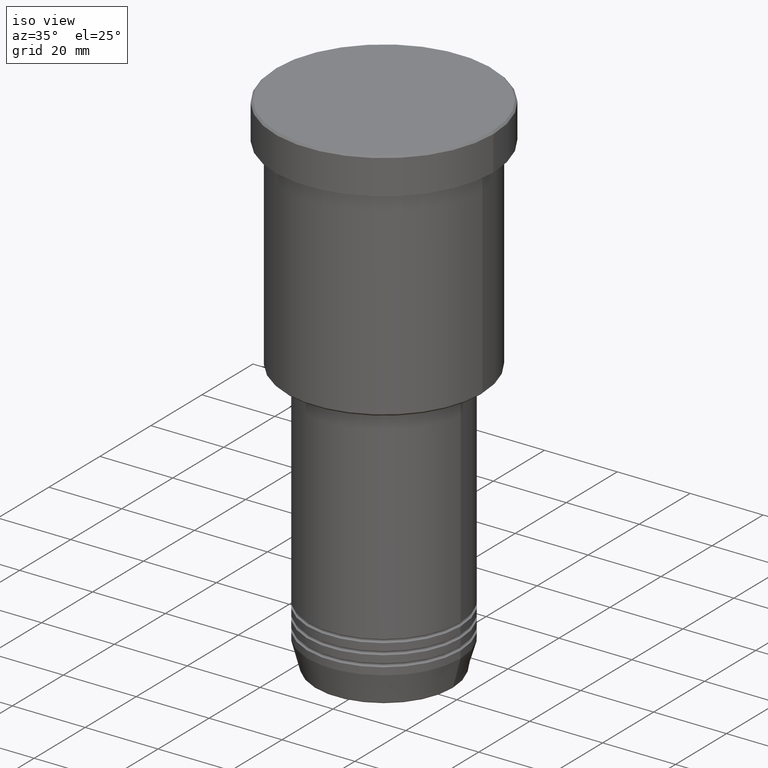
[diagram: clean part render]
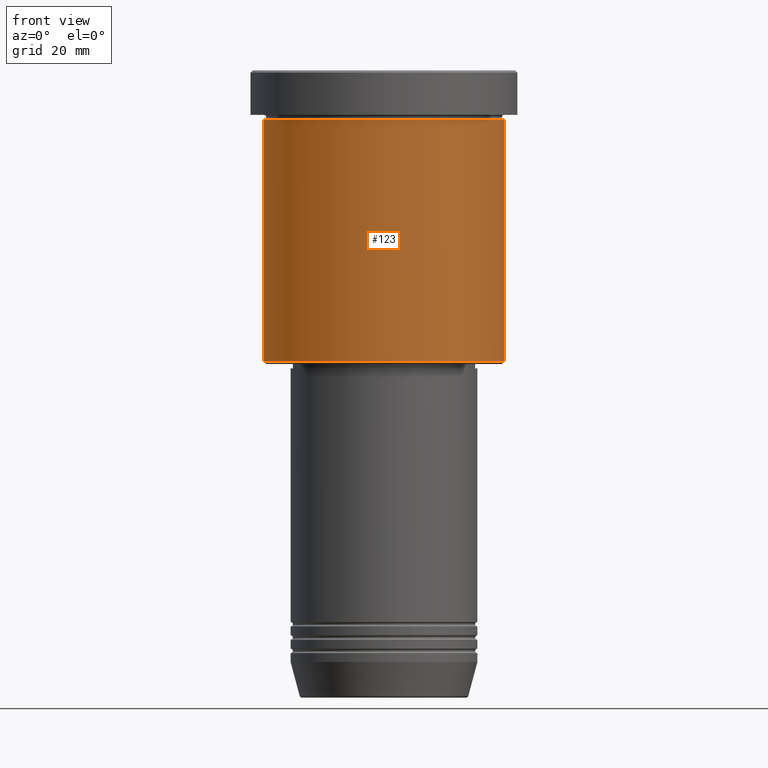
[diagram: tour spotlight — one face highlighted and labeled with its STEP entity id]
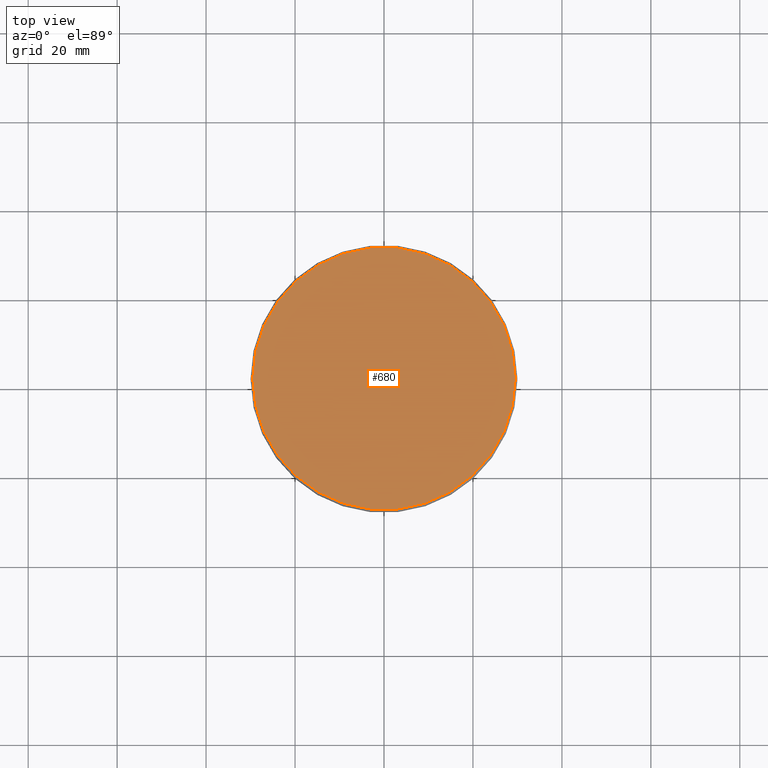
[diagram: tour spotlight — one face highlighted and labeled with its STEP entity id]
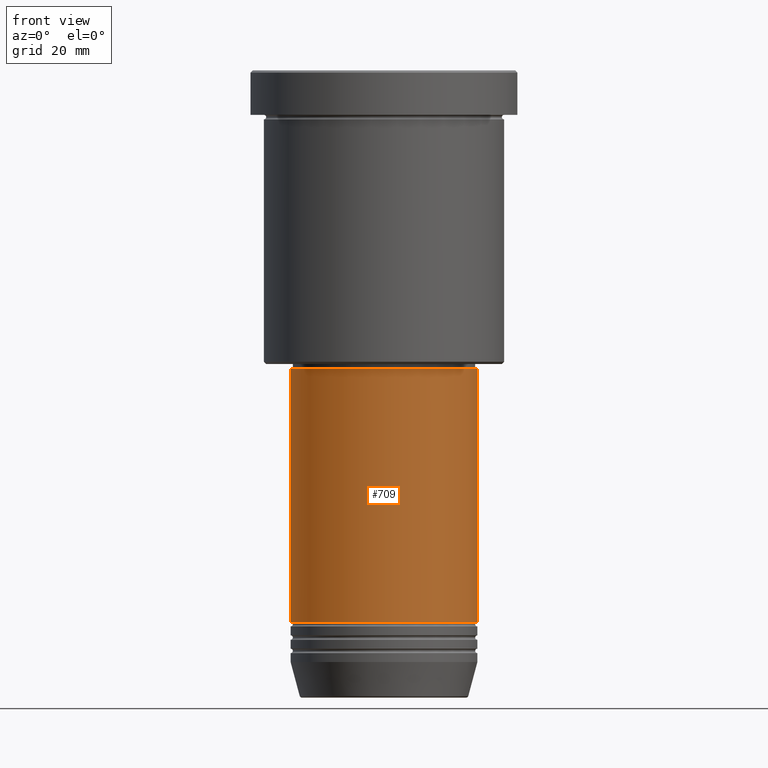
[diagram: tour spotlight — one face highlighted and labeled with its STEP entity id]
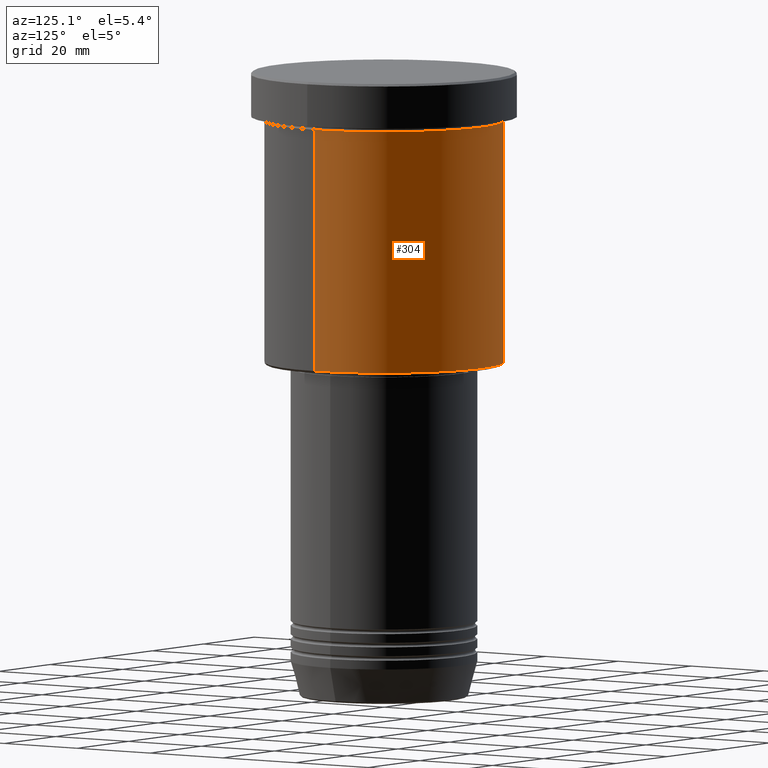
[diagram: tour spotlight — one face highlighted and labeled with its STEP entity id]
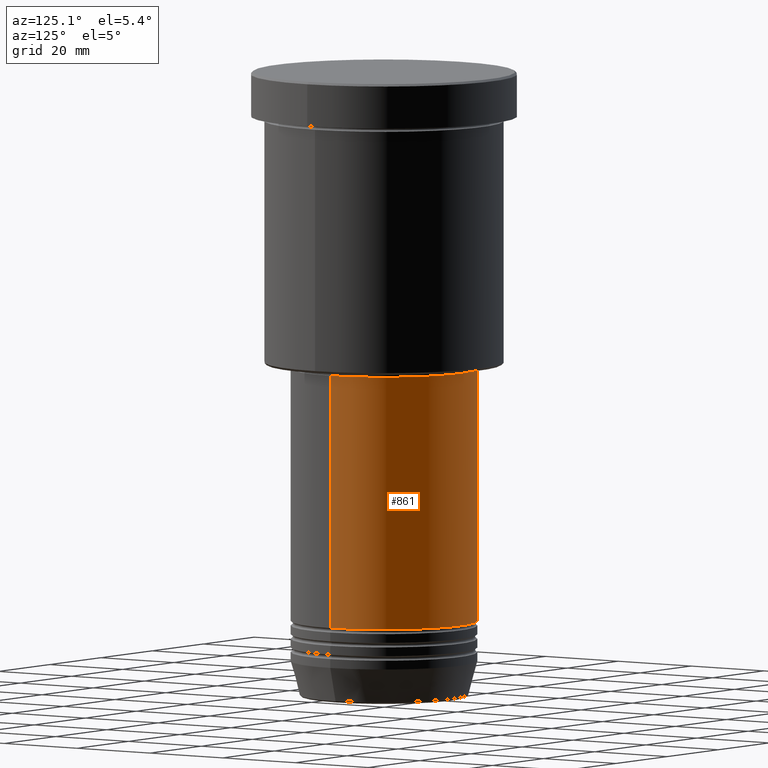
[diagram: tour spotlight — one face highlighted and labeled with its STEP entity id]
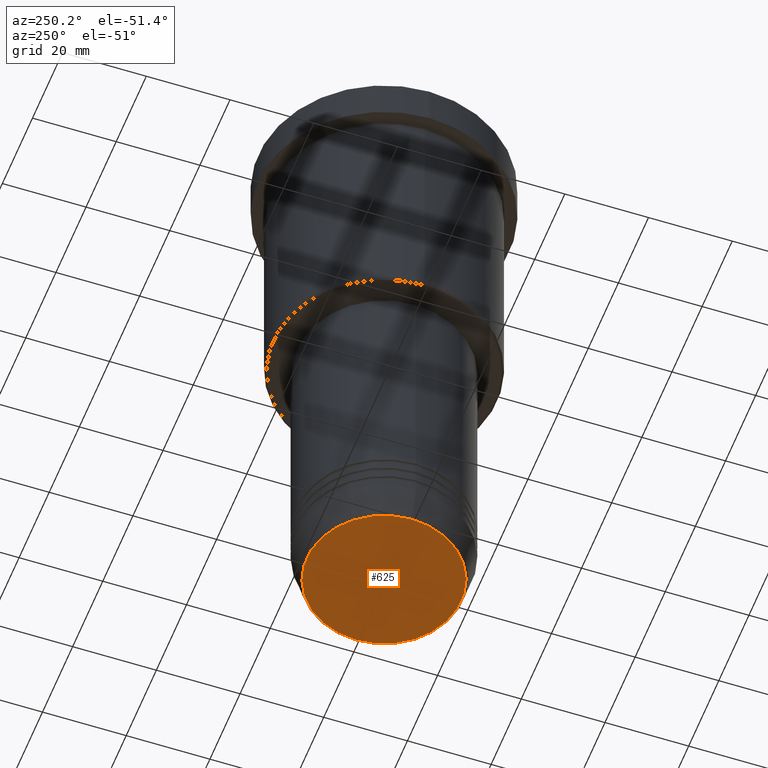
[diagram: tour spotlight — one face highlighted and labeled with its STEP entity id]
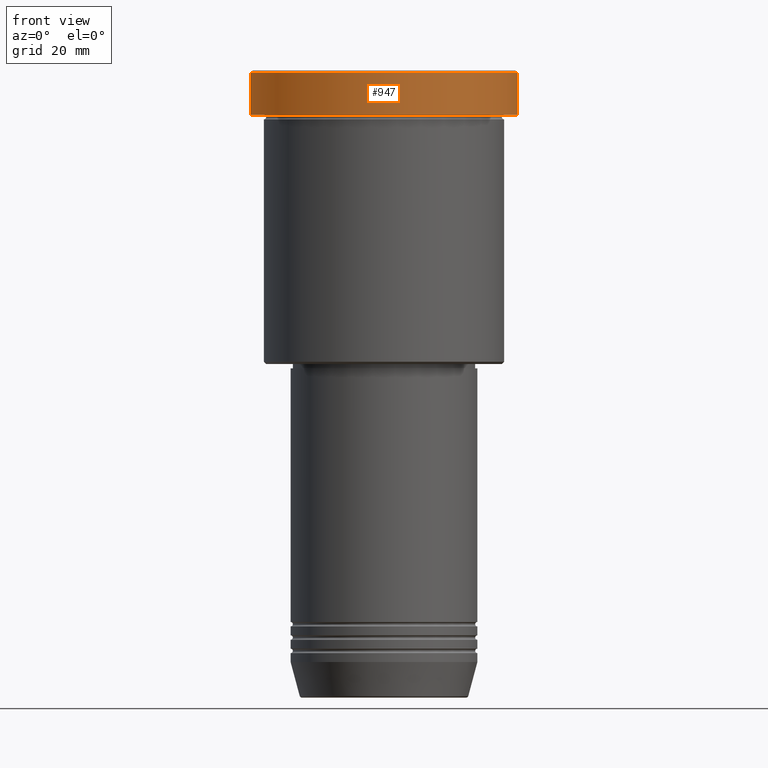
[diagram: tour spotlight — one face highlighted and labeled with its STEP entity id]
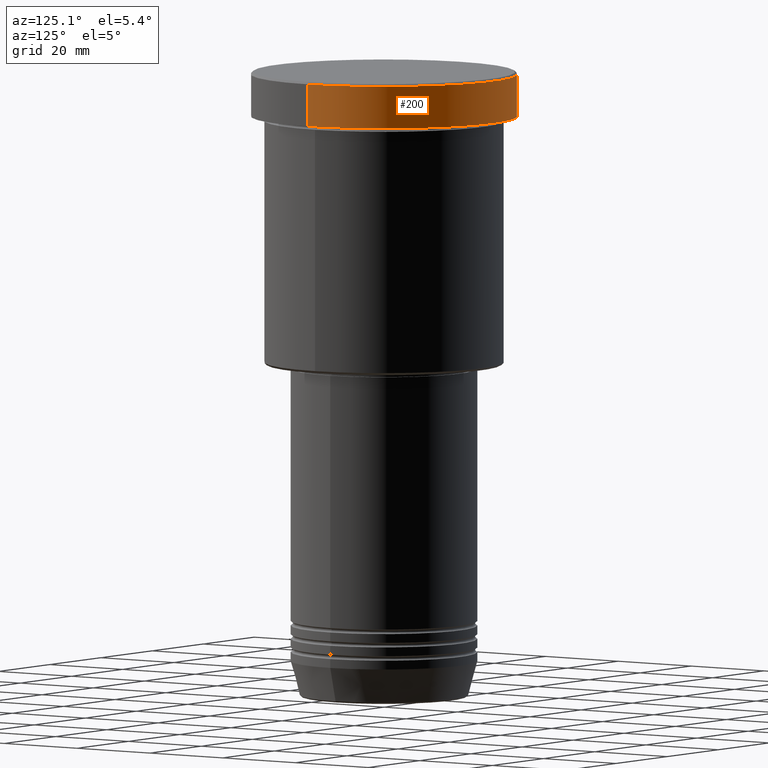
[diagram: tour spotlight — one face highlighted and labeled with its STEP entity id]
A machine part: a face-by-face anatomy tour. The part has 43 B-rep faces; the first image is the clean iso view, then the 8 largest visible faces are spotlighted one at a time (largest first), each with its STEP entity span.

Face 1 — front view, entity #123. In plain terms, the highlighted cylindrical surface (partial cylindrical patch) has radius 27 mm, axis along (-0, -0, 1).
Definition (entity closure, byte-faithful):
#21 = ORIENTED_EDGE ( 'NONE', *, *, #1032, .F. ) ;
#123 = ADVANCED_FACE ( 'NONE', ( #400 ), #1128, .T. ) ;
#166 = DIRECTION ( 'NONE',  ( -1.000000000000000000, 0.000000000000000000, 0.000000000000000000 ) ) ;
#191 = CARTESIAN_POINT ( 'NONE',  ( 27.00000000000000355, 0.000000000000000000, -10.99999999999999289 ) ) ;
#193 = VECTOR ( 'NONE', #222, 1000.000000000000000 ) ;
#222 = DIRECTION ( 'NONE',  ( -0.000000000000000000, -0.000000000000000000, 1.000000000000000000 ) ) ;
#240 = DIRECTION ( 'NONE',  ( -0.000000000000000000, -0.000000000000000000, 1.000000000000000000 ) ) ;
#255 = DIRECTION ( 'NONE',  ( -0.000000000000000000, -0.000000000000000000, 1.000000000000000000 ) ) ;
#292 = VERTEX_POINT ( 'NONE', #975 ) ;
#326 = LINE ( 'NONE', #699, #1006 ) ;
#336 = CARTESIAN_POINT ( 'NONE',  ( 0.000000000000000000, 0.000000000000000000, -10.99999999999999289 ) ) ;
#400 = FACE_OUTER_BOUND ( 'NONE', #678, .T. ) ;
#401 = CIRCLE ( 'NONE', #1075, 27.00000000000000355 ) ;
#406 = DIRECTION ( 'NONE',  ( -0.000000000000000000, -0.000000000000000000, 1.000000000000000000 ) ) ;
#519 = AXIS2_PLACEMENT_3D ( 'NONE', #1105, #651, #166 ) ;
#651 = DIRECTION ( 'NONE',  ( -0.000000000000000000, -0.000000000000000000, 1.000000000000000000 ) ) ;
#678 = EDGE_LOOP ( 'NONE', ( #859, #1152, #880, #21 ) ) ;
#689 = CARTESIAN_POINT ( 'NONE',  ( 27.00000000000000355, 0.000000000000000000, 0.000000000000000000 ) ) ;
#693 = CIRCLE ( 'NONE', #519, 27.00000000000000355 ) ;
#696 = CARTESIAN_POINT ( 'NONE',  ( 0.000000000000000000, 0.000000000000000000, 0.000000000000000000 ) ) ;
#699 = CARTESIAN_POINT ( 'NONE',  ( -27.00000000000000355, 3.306546357697854128E-15, 0.000000000000000000 ) ) ;
#702 = EDGE_CURVE ( 'NONE', #292, #940, #972, .T. ) ;
#781 = DIRECTION ( 'NONE',  ( 1.000000000000000000, 0.000000000000000000, 0.000000000000000000 ) ) ;
#803 = CARTESIAN_POINT ( 'NONE',  ( -27.00000000000000355, 3.306546357697854128E-15, -10.99999999999999289 ) ) ;
#859 = ORIENTED_EDGE ( 'NONE', *, *, #1104, .F. ) ;
#874 = AXIS2_PLACEMENT_3D ( 'NONE', #696, #406, #781 ) ;
#880 = ORIENTED_EDGE ( 'NONE', *, *, #702, .T. ) ;
#882 = EDGE_CURVE ( 'NONE', #919, #292, #693, .T. ) ;
#907 = DIRECTION ( 'NONE',  ( 1.000000000000000000, 0.000000000000000000, 0.000000000000000000 ) ) ;
#919 = VERTEX_POINT ( 'NONE', #923 ) ;
#923 = CARTESIAN_POINT ( 'NONE',  ( -27.00000000000000355, 3.306546357697854128E-15, -65.50000000000000000 ) ) ;
#940 = VERTEX_POINT ( 'NONE', #191 ) ;
#972 = LINE ( 'NONE', #689, #193 ) ;
#975 = CARTESIAN_POINT ( 'NONE',  ( 27.00000000000000355, 0.000000000000000000, -65.50000000000000000 ) ) ;
#1006 = VECTOR ( 'NONE', #255, 1000.000000000000000 ) ;
#1032 = EDGE_CURVE ( 'NONE', #1047, #940, #401, .T. ) ;
#1047 = VERTEX_POINT ( 'NONE', #803 ) ;
#1075 = AXIS2_PLACEMENT_3D ( 'NONE', #336, #240, #907 ) ;
#1104 = EDGE_CURVE ( 'NONE', #919, #1047, #326, .T. ) ;
#1105 = CARTESIAN_POINT ( 'NONE',  ( 0.000000000000000000, 0.000000000000000000, -65.50000000000000000 ) ) ;
#1128 = CYLINDRICAL_SURFACE ( 'NONE', #874, 27.00000000000000355 ) ;
#1152 = ORIENTED_EDGE ( 'NONE', *, *, #882, .T. ) ;

Face 2 — top view, entity #680. In plain terms, the highlighted planar face has unit normal (0, -0, 1).
Definition (entity closure, byte-faithful):
#35 = ORIENTED_EDGE ( 'NONE', *, *, #1159, .T. ) ;
#76 = CARTESIAN_POINT ( 'NONE',  ( 0.000000000000000000, 0.000000000000000000, 0.000000000000000000 ) ) ;
#102 = DIRECTION ( 'NONE',  ( 1.000000000000000000, 0.000000000000000000, 0.000000000000000000 ) ) ;
#137 = FACE_OUTER_BOUND ( 'NONE', #574, .T. ) ;
#141 = DIRECTION ( 'NONE',  ( 0.000000000000000000, -0.000000000000000000, 1.000000000000000000 ) ) ;
#210 = ORIENTED_EDGE ( 'NONE', *, *, #847, .T. ) ;
#269 = CARTESIAN_POINT ( 'NONE',  ( 0.000000000000000000, 0.000000000000000000, 0.000000000000000000 ) ) ;
#325 = PLANE ( 'NONE',  #1144 ) ;
#383 = AXIS2_PLACEMENT_3D ( 'NONE', #76, #1056, #645 ) ;
#463 = VERTEX_POINT ( 'NONE', #1080 ) ;
#574 = EDGE_LOOP ( 'NONE', ( #35, #210 ) ) ;
#645 = DIRECTION ( 'NONE',  ( 1.000000000000000000, 0.000000000000000000, 0.000000000000000000 ) ) ;
#680 = ADVANCED_FACE ( 'NONE', ( #137 ), #325, .T. ) ;
#752 = VERTEX_POINT ( 'NONE', #823 ) ;
#775 = CIRCLE ( 'NONE', #1040, 29.50000000000000000 ) ;
#776 = CIRCLE ( 'NONE', #383, 29.50000000000000000 ) ;
#796 = DIRECTION ( 'NONE',  ( 1.000000000000000000, 0.000000000000000000, 0.000000000000000000 ) ) ;
#823 = CARTESIAN_POINT ( 'NONE',  ( 29.50000000000000000, 3.643324227463375391E-15, 0.000000000000000000 ) ) ;
#844 = DIRECTION ( 'NONE',  ( -0.000000000000000000, -0.000000000000000000, 1.000000000000000000 ) ) ;
#847 = EDGE_CURVE ( 'NONE', #752, #463, #775, .T. ) ;
#1040 = AXIS2_PLACEMENT_3D ( 'NONE', #269, #844, #102 ) ;
#1056 = DIRECTION ( 'NONE',  ( -0.000000000000000000, -0.000000000000000000, 1.000000000000000000 ) ) ;
#1080 = CARTESIAN_POINT ( 'NONE',  ( -29.50000000000000000, 0.000000000000000000, 0.000000000000000000 ) ) ;
#1144 = AXIS2_PLACEMENT_3D ( 'NONE', #1147, #141, #796 ) ;
#1147 = CARTESIAN_POINT ( 'NONE',  ( 0.000000000000000000, 0.000000000000000000, 0.000000000000000000 ) ) ;
#1159 = EDGE_CURVE ( 'NONE', #463, #752, #776, .T. ) ;

Face 3 — front view, entity #709. In plain terms, the highlighted cylindrical surface (partial cylindrical patch) has radius 21 mm, axis along (-0, -0, 1).
Definition (entity closure, byte-faithful):
#49 = DIRECTION ( 'NONE',  ( -0.000000000000000000, -0.000000000000000000, 1.000000000000000000 ) ) ;
#62 = CARTESIAN_POINT ( 'NONE',  ( 0.000000000000000000, 0.000000000000000000, -123.9999999999999716 ) ) ;
#67 = DIRECTION ( 'NONE',  ( -0.000000000000000000, -0.000000000000000000, 1.000000000000000000 ) ) ;
#68 = VERTEX_POINT ( 'NONE', #559 ) ;
#113 = AXIS2_PLACEMENT_3D ( 'NONE', #235, #49, #607 ) ;
#122 = DIRECTION ( 'NONE',  ( -0.000000000000000000, -0.000000000000000000, 1.000000000000000000 ) ) ;
#154 = EDGE_CURVE ( 'NONE', #331, #767, #507, .T. ) ;
#235 = CARTESIAN_POINT ( 'NONE',  ( 0.000000000000000000, 0.000000000000000000, 0.000000000000000000 ) ) ;
#257 = CARTESIAN_POINT ( 'NONE',  ( 21.00000000000000000, 0.000000000000000000, -67.00000000000000000 ) ) ;
#276 = ORIENTED_EDGE ( 'NONE', *, *, #154, .F. ) ;
#302 = ORIENTED_EDGE ( 'NONE', *, *, #1069, .T. ) ;
#303 = CARTESIAN_POINT ( 'NONE',  ( -21.00000000000000000, 2.571758278209441661E-15, 0.000000000000000000 ) ) ;
#316 = EDGE_CURVE ( 'NONE', #767, #395, #386, .T. ) ;
#331 = VERTEX_POINT ( 'NONE', #899 ) ;
#386 = CIRCLE ( 'NONE', #738, 21.00000000000000000 ) ;
#395 = VERTEX_POINT ( 'NONE', #257 ) ;
#427 = ORIENTED_EDGE ( 'NONE', *, *, #316, .F. ) ;
#437 = AXIS2_PLACEMENT_3D ( 'NONE', #62, #67, #515 ) ;
#442 = VECTOR ( 'NONE', #122, 1000.000000000000000 ) ;
#507 = LINE ( 'NONE', #303, #442 ) ;
#514 = CARTESIAN_POINT ( 'NONE',  ( 21.00000000000000000, 0.000000000000000000, 0.000000000000000000 ) ) ;
#515 = DIRECTION ( 'NONE',  ( 1.000000000000000000, 0.000000000000000000, 0.000000000000000000 ) ) ;
#517 = CARTESIAN_POINT ( 'NONE',  ( 0.000000000000000000, 0.000000000000000000, -67.00000000000000000 ) ) ;
#559 = CARTESIAN_POINT ( 'NONE',  ( 21.00000000000000000, 0.000000000000000000, -123.9999999999999716 ) ) ;
#607 = DIRECTION ( 'NONE',  ( 1.000000000000000000, 0.000000000000000000, 0.000000000000000000 ) ) ;
#658 = EDGE_CURVE ( 'NONE', #68, #395, #710, .T. ) ;
#709 = ADVANCED_FACE ( 'NONE', ( #1065 ), #1061, .T. ) ;
#710 = LINE ( 'NONE', #514, #734 ) ;
#716 = DIRECTION ( 'NONE',  ( 1.000000000000000000, 0.000000000000000000, 0.000000000000000000 ) ) ;
#734 = VECTOR ( 'NONE', #977, 1000.000000000000000 ) ;
#738 = AXIS2_PLACEMENT_3D ( 'NONE', #517, #1165, #716 ) ;
#767 = VERTEX_POINT ( 'NONE', #1092 ) ;
#899 = CARTESIAN_POINT ( 'NONE',  ( -21.00000000000000000, 2.571758278209441661E-15, -123.9999999999999716 ) ) ;
#977 = DIRECTION ( 'NONE',  ( -0.000000000000000000, -0.000000000000000000, 1.000000000000000000 ) ) ;
#1054 = CIRCLE ( 'NONE', #437, 21.00000000000000000 ) ;
#1061 = CYLINDRICAL_SURFACE ( 'NONE', #113, 21.00000000000000000 ) ;
#1065 = FACE_OUTER_BOUND ( 'NONE', #1106, .T. ) ;
#1069 = EDGE_CURVE ( 'NONE', #331, #68, #1054, .T. ) ;
#1092 = CARTESIAN_POINT ( 'NONE',  ( -21.00000000000000000, 2.571758278209441661E-15, -67.00000000000000000 ) ) ;
#1106 = EDGE_LOOP ( 'NONE', ( #276, #302, #1125, #427 ) ) ;
#1125 = ORIENTED_EDGE ( 'NONE', *, *, #658, .T. ) ;
#1165 = DIRECTION ( 'NONE',  ( -0.000000000000000000, -0.000000000000000000, 1.000000000000000000 ) ) ;

Face 4 — auxiliary view, entity #304. In plain terms, the highlighted cylindrical surface (partial cylindrical patch) has radius 27 mm, axis along (-0, -0, 1).
Definition (entity closure, byte-faithful):
#65 = DIRECTION ( 'NONE',  ( 1.000000000000000000, 0.000000000000000000, 0.000000000000000000 ) ) ;
#148 = CARTESIAN_POINT ( 'NONE',  ( 0.000000000000000000, 0.000000000000000000, 0.000000000000000000 ) ) ;
#162 = DIRECTION ( 'NONE',  ( -0.000000000000000000, -0.000000000000000000, 1.000000000000000000 ) ) ;
#191 = CARTESIAN_POINT ( 'NONE',  ( 27.00000000000000355, 0.000000000000000000, -10.99999999999999289 ) ) ;
#193 = VECTOR ( 'NONE', #222, 1000.000000000000000 ) ;
#222 = DIRECTION ( 'NONE',  ( -0.000000000000000000, -0.000000000000000000, 1.000000000000000000 ) ) ;
#232 = EDGE_CURVE ( 'NONE', #292, #919, #661, .T. ) ;
#255 = DIRECTION ( 'NONE',  ( -0.000000000000000000, -0.000000000000000000, 1.000000000000000000 ) ) ;
#292 = VERTEX_POINT ( 'NONE', #975 ) ;
#304 = ADVANCED_FACE ( 'NONE', ( #621 ), #992, .T. ) ;
#311 = DIRECTION ( 'NONE',  ( -1.000000000000000000, 0.000000000000000000, 0.000000000000000000 ) ) ;
#319 = EDGE_LOOP ( 'NONE', ( #630, #454, #511, #359 ) ) ;
#326 = LINE ( 'NONE', #699, #1006 ) ;
#346 = AXIS2_PLACEMENT_3D ( 'NONE', #148, #162, #904 ) ;
#348 = DIRECTION ( 'NONE',  ( -0.000000000000000000, -0.000000000000000000, 1.000000000000000000 ) ) ;
#355 = CARTESIAN_POINT ( 'NONE',  ( 0.000000000000000000, 0.000000000000000000, -10.99999999999999289 ) ) ;
#359 = ORIENTED_EDGE ( 'NONE', *, *, #702, .F. ) ;
#367 = EDGE_CURVE ( 'NONE', #940, #1047, #759, .T. ) ;
#454 = ORIENTED_EDGE ( 'NONE', *, *, #1104, .T. ) ;
#491 = CARTESIAN_POINT ( 'NONE',  ( 0.000000000000000000, 0.000000000000000000, -65.50000000000000000 ) ) ;
#511 = ORIENTED_EDGE ( 'NONE', *, *, #367, .F. ) ;
#621 = FACE_OUTER_BOUND ( 'NONE', #319, .T. ) ;
#630 = ORIENTED_EDGE ( 'NONE', *, *, #232, .T. ) ;
#661 = CIRCLE ( 'NONE', #814, 27.00000000000000355 ) ;
#689 = CARTESIAN_POINT ( 'NONE',  ( 27.00000000000000355, 0.000000000000000000, 0.000000000000000000 ) ) ;
#699 = CARTESIAN_POINT ( 'NONE',  ( -27.00000000000000355, 3.306546357697854128E-15, 0.000000000000000000 ) ) ;
#701 = DIRECTION ( 'NONE',  ( -0.000000000000000000, -0.000000000000000000, 1.000000000000000000 ) ) ;
#702 = EDGE_CURVE ( 'NONE', #292, #940, #972, .T. ) ;
#759 = CIRCLE ( 'NONE', #1058, 27.00000000000000355 ) ;
#803 = CARTESIAN_POINT ( 'NONE',  ( -27.00000000000000355, 3.306546357697854128E-15, -10.99999999999999289 ) ) ;
#814 = AXIS2_PLACEMENT_3D ( 'NONE', #491, #701, #311 ) ;
#904 = DIRECTION ( 'NONE',  ( 1.000000000000000000, 0.000000000000000000, 0.000000000000000000 ) ) ;
#919 = VERTEX_POINT ( 'NONE', #923 ) ;
#923 = CARTESIAN_POINT ( 'NONE',  ( -27.00000000000000355, 3.306546357697854128E-15, -65.50000000000000000 ) ) ;
#940 = VERTEX_POINT ( 'NONE', #191 ) ;
#972 = LINE ( 'NONE', #689, #193 ) ;
#975 = CARTESIAN_POINT ( 'NONE',  ( 27.00000000000000355, 0.000000000000000000, -65.50000000000000000 ) ) ;
#992 = CYLINDRICAL_SURFACE ( 'NONE', #346, 27.00000000000000355 ) ;
#1006 = VECTOR ( 'NONE', #255, 1000.000000000000000 ) ;
#1047 = VERTEX_POINT ( 'NONE', #803 ) ;
#1058 = AXIS2_PLACEMENT_3D ( 'NONE', #355, #348, #65 ) ;
#1104 = EDGE_CURVE ( 'NONE', #919, #1047, #326, .T. ) ;

Face 5 — auxiliary view, entity #861. In plain terms, the highlighted cylindrical surface (partial cylindrical patch) has radius 21 mm, axis along (-0, -0, 1).
Definition (entity closure, byte-faithful):
#3 = CARTESIAN_POINT ( 'NONE',  ( 0.000000000000000000, 0.000000000000000000, 0.000000000000000000 ) ) ;
#7 = AXIS2_PLACEMENT_3D ( 'NONE', #3, #14, #1014 ) ;
#14 = DIRECTION ( 'NONE',  ( -0.000000000000000000, -0.000000000000000000, 1.000000000000000000 ) ) ;
#42 = ORIENTED_EDGE ( 'NONE', *, *, #658, .F. ) ;
#68 = VERTEX_POINT ( 'NONE', #559 ) ;
#85 = DIRECTION ( 'NONE',  ( -0.000000000000000000, -0.000000000000000000, 1.000000000000000000 ) ) ;
#122 = DIRECTION ( 'NONE',  ( -0.000000000000000000, -0.000000000000000000, 1.000000000000000000 ) ) ;
#138 = ORIENTED_EDGE ( 'NONE', *, *, #731, .T. ) ;
#154 = EDGE_CURVE ( 'NONE', #331, #767, #507, .T. ) ;
#257 = CARTESIAN_POINT ( 'NONE',  ( 21.00000000000000000, 0.000000000000000000, -67.00000000000000000 ) ) ;
#267 = CIRCLE ( 'NONE', #494, 21.00000000000000000 ) ;
#298 = ORIENTED_EDGE ( 'NONE', *, *, #681, .F. ) ;
#303 = CARTESIAN_POINT ( 'NONE',  ( -21.00000000000000000, 2.571758278209441661E-15, 0.000000000000000000 ) ) ;
#331 = VERTEX_POINT ( 'NONE', #899 ) ;
#395 = VERTEX_POINT ( 'NONE', #257 ) ;
#442 = VECTOR ( 'NONE', #122, 1000.000000000000000 ) ;
#474 = EDGE_LOOP ( 'NONE', ( #138, #568, #298, #42 ) ) ;
#494 = AXIS2_PLACEMENT_3D ( 'NONE', #1081, #85, #628 ) ;
#507 = LINE ( 'NONE', #303, #442 ) ;
#509 = CARTESIAN_POINT ( 'NONE',  ( 0.000000000000000000, 0.000000000000000000, -67.00000000000000000 ) ) ;
#514 = CARTESIAN_POINT ( 'NONE',  ( 21.00000000000000000, 0.000000000000000000, 0.000000000000000000 ) ) ;
#524 = DIRECTION ( 'NONE',  ( -0.000000000000000000, -0.000000000000000000, 1.000000000000000000 ) ) ;
#559 = CARTESIAN_POINT ( 'NONE',  ( 21.00000000000000000, 0.000000000000000000, -123.9999999999999716 ) ) ;
#568 = ORIENTED_EDGE ( 'NONE', *, *, #154, .T. ) ;
#617 = DIRECTION ( 'NONE',  ( 1.000000000000000000, 0.000000000000000000, 0.000000000000000000 ) ) ;
#628 = DIRECTION ( 'NONE',  ( 1.000000000000000000, 0.000000000000000000, 0.000000000000000000 ) ) ;
#658 = EDGE_CURVE ( 'NONE', #68, #395, #710, .T. ) ;
#659 = CYLINDRICAL_SURFACE ( 'NONE', #7, 21.00000000000000000 ) ;
#681 = EDGE_CURVE ( 'NONE', #395, #767, #1021, .T. ) ;
#710 = LINE ( 'NONE', #514, #734 ) ;
#731 = EDGE_CURVE ( 'NONE', #68, #331, #267, .T. ) ;
#734 = VECTOR ( 'NONE', #977, 1000.000000000000000 ) ;
#746 = FACE_OUTER_BOUND ( 'NONE', #474, .T. ) ;
#767 = VERTEX_POINT ( 'NONE', #1092 ) ;
#861 = ADVANCED_FACE ( 'NONE', ( #746 ), #659, .T. ) ;
#899 = CARTESIAN_POINT ( 'NONE',  ( -21.00000000000000000, 2.571758278209441661E-15, -123.9999999999999716 ) ) ;
#977 = DIRECTION ( 'NONE',  ( -0.000000000000000000, -0.000000000000000000, 1.000000000000000000 ) ) ;
#1014 = DIRECTION ( 'NONE',  ( 1.000000000000000000, 0.000000000000000000, 0.000000000000000000 ) ) ;
#1021 = CIRCLE ( 'NONE', #1130, 21.00000000000000000 ) ;
#1081 = CARTESIAN_POINT ( 'NONE',  ( 0.000000000000000000, 0.000000000000000000, -123.9999999999999716 ) ) ;
#1092 = CARTESIAN_POINT ( 'NONE',  ( -21.00000000000000000, 2.571758278209441661E-15, -67.00000000000000000 ) ) ;
#1130 = AXIS2_PLACEMENT_3D ( 'NONE', #509, #524, #617 ) ;

Face 6 — auxiliary view, entity #625. In plain terms, the highlighted planar face has unit normal (0, -0, 1).
Definition (entity closure, byte-faithful):
#153 = CARTESIAN_POINT ( 'NONE',  ( -18.47274296656153680, 2.291831503831603257E-15, -141.0000000000000000 ) ) ;
#161 = EDGE_LOOP ( 'NONE', ( #700, #1127 ) ) ;
#237 = VERTEX_POINT ( 'NONE', #1048 ) ;
#247 = DIRECTION ( 'NONE',  ( 1.000000000000000000, 0.000000000000000000, 0.000000000000000000 ) ) ;
#286 = DIRECTION ( 'NONE',  ( 1.000000000000000000, 0.000000000000000000, 0.000000000000000000 ) ) ;
#335 = PLANE ( 'NONE',  #456 ) ;
#364 = DIRECTION ( 'NONE',  ( 0.000000000000000000, 0.000000000000000000, -1.000000000000000000 ) ) ;
#374 = DIRECTION ( 'NONE',  ( 1.000000000000000000, 0.000000000000000000, 0.000000000000000000 ) ) ;
#415 = CIRCLE ( 'NONE', #475, 18.47274296656153680 ) ;
#456 = AXIS2_PLACEMENT_3D ( 'NONE', #787, #900, #247 ) ;
#475 = AXIS2_PLACEMENT_3D ( 'NONE', #639, #1009, #286 ) ;
#500 = CIRCLE ( 'NONE', #1170, 18.47274296656153680 ) ;
#625 = ADVANCED_FACE ( 'NONE', ( #887 ), #335, .F. ) ;
#631 = CARTESIAN_POINT ( 'NONE',  ( 0.000000000000000000, 0.000000000000000000, -141.0000000000000000 ) ) ;
#639 = CARTESIAN_POINT ( 'NONE',  ( 0.000000000000000000, 0.000000000000000000, -141.0000000000000000 ) ) ;
#700 = ORIENTED_EDGE ( 'NONE', *, *, #798, .T. ) ;
#787 = CARTESIAN_POINT ( 'NONE',  ( 0.000000000000000000, 0.000000000000000000, -141.0000000000000000 ) ) ;
#798 = EDGE_CURVE ( 'NONE', #237, #1059, #415, .T. ) ;
#887 = FACE_OUTER_BOUND ( 'NONE', #161, .T. ) ;
#896 = EDGE_CURVE ( 'NONE', #1059, #237, #500, .T. ) ;
#900 = DIRECTION ( 'NONE',  ( 0.000000000000000000, -0.000000000000000000, 1.000000000000000000 ) ) ;
#1009 = DIRECTION ( 'NONE',  ( 0.000000000000000000, 0.000000000000000000, -1.000000000000000000 ) ) ;
#1048 = CARTESIAN_POINT ( 'NONE',  ( 18.47274296656153680, 0.000000000000000000, -141.0000000000000000 ) ) ;
#1059 = VERTEX_POINT ( 'NONE', #153 ) ;
#1127 = ORIENTED_EDGE ( 'NONE', *, *, #896, .T. ) ;
#1170 = AXIS2_PLACEMENT_3D ( 'NONE', #631, #364, #374 ) ;

Face 7 — front view, entity #947. In plain terms, the highlighted cylindrical surface (partial cylindrical patch) has radius 30 mm, axis along (-0, -0, 1).
Definition (entity closure, byte-faithful):
#8 = AXIS2_PLACEMENT_3D ( 'NONE', #679, #1143, #499 ) ;
#47 = CARTESIAN_POINT ( 'NONE',  ( 30.00000000000000000, 0.000000000000000000, 0.000000000000000000 ) ) ;
#79 = CYLINDRICAL_SURFACE ( 'NONE', #911, 30.00000000000000000 ) ;
#86 = CARTESIAN_POINT ( 'NONE',  ( 0.000000000000000000, 0.000000000000000000, 0.000000000000000000 ) ) ;
#88 = LINE ( 'NONE', #733, #581 ) ;
#93 = VERTEX_POINT ( 'NONE', #202 ) ;
#140 = EDGE_CURVE ( 'NONE', #1110, #93, #1044, .T. ) ;
#143 = EDGE_LOOP ( 'NONE', ( #1163, #1095, #1142, #582 ) ) ;
#185 = EDGE_CURVE ( 'NONE', #93, #747, #461, .T. ) ;
#190 = AXIS2_PLACEMENT_3D ( 'NONE', #430, #998, #446 ) ;
#197 = VECTOR ( 'NONE', #414, 1000.000000000000000 ) ;
#202 = CARTESIAN_POINT ( 'NONE',  ( 30.00000000000000000, 0.000000000000000000, -0.4999999999999935052 ) ) ;
#378 = EDGE_CURVE ( 'NONE', #741, #1110, #1098, .T. ) ;
#414 = DIRECTION ( 'NONE',  ( -0.000000000000000000, -0.000000000000000000, 1.000000000000000000 ) ) ;
#420 = EDGE_CURVE ( 'NONE', #741, #747, #88, .T. ) ;
#430 = CARTESIAN_POINT ( 'NONE',  ( 0.000000000000000000, 0.000000000000000000, -9.999999999999992895 ) ) ;
#443 = DIRECTION ( 'NONE',  ( -0.000000000000000000, -0.000000000000000000, 1.000000000000000000 ) ) ;
#446 = DIRECTION ( 'NONE',  ( 1.000000000000000000, 0.000000000000000000, 0.000000000000000000 ) ) ;
#451 = DIRECTION ( 'NONE',  ( -0.000000000000000000, -0.000000000000000000, 1.000000000000000000 ) ) ;
#461 = CIRCLE ( 'NONE', #8, 30.00000000000000000 ) ;
#499 = DIRECTION ( 'NONE',  ( 1.000000000000000000, 0.000000000000000000, 0.000000000000000000 ) ) ;
#536 = FACE_OUTER_BOUND ( 'NONE', #143, .T. ) ;
#549 = CARTESIAN_POINT ( 'NONE',  ( -30.00000000000000000, 3.673940397442059178E-15, -0.4999999999999935052 ) ) ;
#581 = VECTOR ( 'NONE', #451, 1000.000000000000000 ) ;
#582 = ORIENTED_EDGE ( 'NONE', *, *, #185, .T. ) ;
#679 = CARTESIAN_POINT ( 'NONE',  ( 0.000000000000000000, 0.000000000000000000, -0.4999999999999935052 ) ) ;
#733 = CARTESIAN_POINT ( 'NONE',  ( -30.00000000000000000, 3.673940397442059178E-15, 0.000000000000000000 ) ) ;
#741 = VERTEX_POINT ( 'NONE', #1176 ) ;
#747 = VERTEX_POINT ( 'NONE', #549 ) ;
#911 = AXIS2_PLACEMENT_3D ( 'NONE', #86, #443, #1178 ) ;
#947 = ADVANCED_FACE ( 'NONE', ( #536 ), #79, .T. ) ;
#998 = DIRECTION ( 'NONE',  ( -0.000000000000000000, -0.000000000000000000, 1.000000000000000000 ) ) ;
#1044 = LINE ( 'NONE', #47, #197 ) ;
#1062 = CARTESIAN_POINT ( 'NONE',  ( 30.00000000000000000, 0.000000000000000000, -9.999999999999992895 ) ) ;
#1095 = ORIENTED_EDGE ( 'NONE', *, *, #378, .T. ) ;
#1098 = CIRCLE ( 'NONE', #190, 30.00000000000000000 ) ;
#1110 = VERTEX_POINT ( 'NONE', #1062 ) ;
#1142 = ORIENTED_EDGE ( 'NONE', *, *, #140, .T. ) ;
#1143 = DIRECTION ( 'NONE',  ( 0.000000000000000000, 0.000000000000000000, -1.000000000000000000 ) ) ;
#1163 = ORIENTED_EDGE ( 'NONE', *, *, #420, .F. ) ;
#1176 = CARTESIAN_POINT ( 'NONE',  ( -30.00000000000000000, 3.673940397442059178E-15, -9.999999999999992895 ) ) ;
#1178 = DIRECTION ( 'NONE',  ( 1.000000000000000000, 0.000000000000000000, 0.000000000000000000 ) ) ;

Face 8 — auxiliary view, entity #200. In plain terms, the highlighted cylindrical surface (partial cylindrical patch) has radius 30 mm, axis along (-0, -0, 1).
Definition (entity closure, byte-faithful):
#20 = AXIS2_PLACEMENT_3D ( 'NONE', #1042, #215, #758 ) ;
#47 = CARTESIAN_POINT ( 'NONE',  ( 30.00000000000000000, 0.000000000000000000, 0.000000000000000000 ) ) ;
#88 = LINE ( 'NONE', #733, #581 ) ;
#92 = ORIENTED_EDGE ( 'NONE', *, *, #570, .T. ) ;
#93 = VERTEX_POINT ( 'NONE', #202 ) ;
#95 = CARTESIAN_POINT ( 'NONE',  ( 0.000000000000000000, 0.000000000000000000, -9.999999999999992895 ) ) ;
#140 = EDGE_CURVE ( 'NONE', #1110, #93, #1044, .T. ) ;
#197 = VECTOR ( 'NONE', #414, 1000.000000000000000 ) ;
#200 = ADVANCED_FACE ( 'NONE', ( #217 ), #591, .T. ) ;
#202 = CARTESIAN_POINT ( 'NONE',  ( 30.00000000000000000, 0.000000000000000000, -0.4999999999999935052 ) ) ;
#215 = DIRECTION ( 'NONE',  ( 0.000000000000000000, 0.000000000000000000, -1.000000000000000000 ) ) ;
#217 = FACE_OUTER_BOUND ( 'NONE', #1015, .T. ) ;
#246 = AXIS2_PLACEMENT_3D ( 'NONE', #95, #928, #840 ) ;
#375 = ORIENTED_EDGE ( 'NONE', *, *, #140, .F. ) ;
#398 = CIRCLE ( 'NONE', #20, 30.00000000000000000 ) ;
#414 = DIRECTION ( 'NONE',  ( -0.000000000000000000, -0.000000000000000000, 1.000000000000000000 ) ) ;
#420 = EDGE_CURVE ( 'NONE', #741, #747, #88, .T. ) ;
#451 = DIRECTION ( 'NONE',  ( -0.000000000000000000, -0.000000000000000000, 1.000000000000000000 ) ) ;
#521 = AXIS2_PLACEMENT_3D ( 'NONE', #688, #967, #881 ) ;
#530 = ORIENTED_EDGE ( 'NONE', *, *, #420, .T. ) ;
#549 = CARTESIAN_POINT ( 'NONE',  ( -30.00000000000000000, 3.673940397442059178E-15, -0.4999999999999935052 ) ) ;
#570 = EDGE_CURVE ( 'NONE', #747, #93, #398, .T. ) ;
#581 = VECTOR ( 'NONE', #451, 1000.000000000000000 ) ;
#591 = CYLINDRICAL_SURFACE ( 'NONE', #521, 30.00000000000000000 ) ;
#675 = CIRCLE ( 'NONE', #246, 30.00000000000000000 ) ;
#688 = CARTESIAN_POINT ( 'NONE',  ( 0.000000000000000000, 0.000000000000000000, 0.000000000000000000 ) ) ;
#733 = CARTESIAN_POINT ( 'NONE',  ( -30.00000000000000000, 3.673940397442059178E-15, 0.000000000000000000 ) ) ;
#741 = VERTEX_POINT ( 'NONE', #1176 ) ;
#747 = VERTEX_POINT ( 'NONE', #549 ) ;
#758 = DIRECTION ( 'NONE',  ( 1.000000000000000000, 0.000000000000000000, 0.000000000000000000 ) ) ;
#840 = DIRECTION ( 'NONE',  ( 1.000000000000000000, 0.000000000000000000, 0.000000000000000000 ) ) ;
#881 = DIRECTION ( 'NONE',  ( 1.000000000000000000, 0.000000000000000000, 0.000000000000000000 ) ) ;
#928 = DIRECTION ( 'NONE',  ( -0.000000000000000000, -0.000000000000000000, 1.000000000000000000 ) ) ;
#936 = EDGE_CURVE ( 'NONE', #1110, #741, #675, .T. ) ;
#967 = DIRECTION ( 'NONE',  ( -0.000000000000000000, -0.000000000000000000, 1.000000000000000000 ) ) ;
#1015 = EDGE_LOOP ( 'NONE', ( #1119, #530, #92, #375 ) ) ;
#1042 = CARTESIAN_POINT ( 'NONE',  ( 0.000000000000000000, 0.000000000000000000, -0.4999999999999935052 ) ) ;
#1044 = LINE ( 'NONE', #47, #197 ) ;
#1062 = CARTESIAN_POINT ( 'NONE',  ( 30.00000000000000000, 0.000000000000000000, -9.999999999999992895 ) ) ;
#1110 = VERTEX_POINT ( 'NONE', #1062 ) ;
#1119 = ORIENTED_EDGE ( 'NONE', *, *, #936, .T. ) ;
#1176 = CARTESIAN_POINT ( 'NONE',  ( -30.00000000000000000, 3.673940397442059178E-15, -9.999999999999992895 ) ) ;